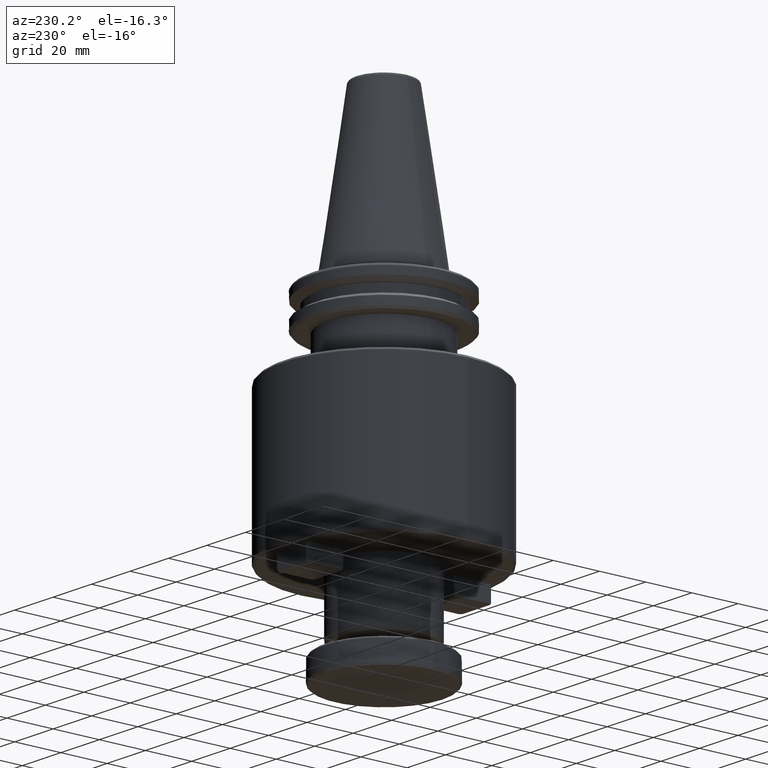
[diagram: clean part render]
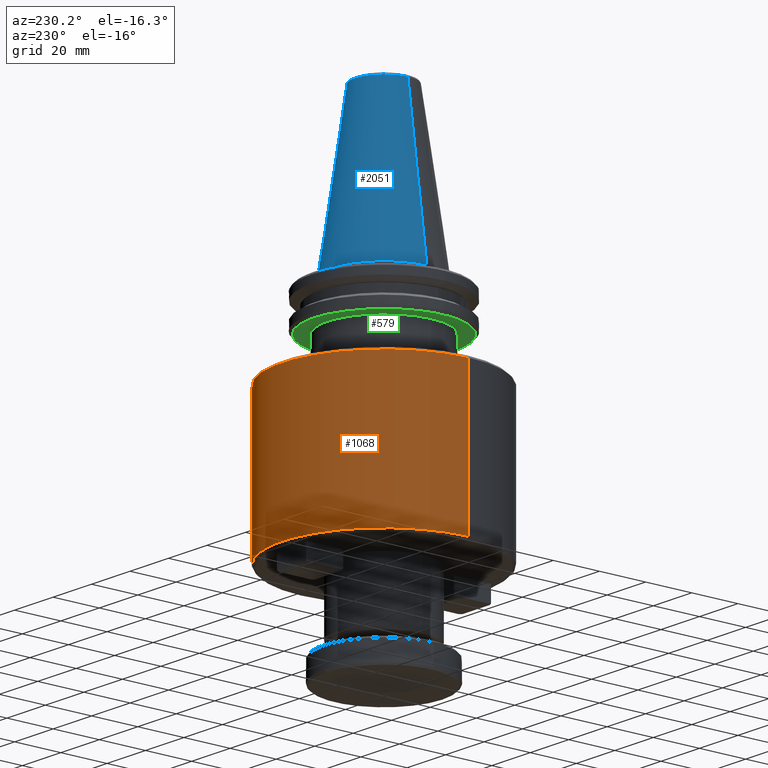
[diagram: same view with three faces highlighted in distinct colors, each labeled with its STEP entity id]
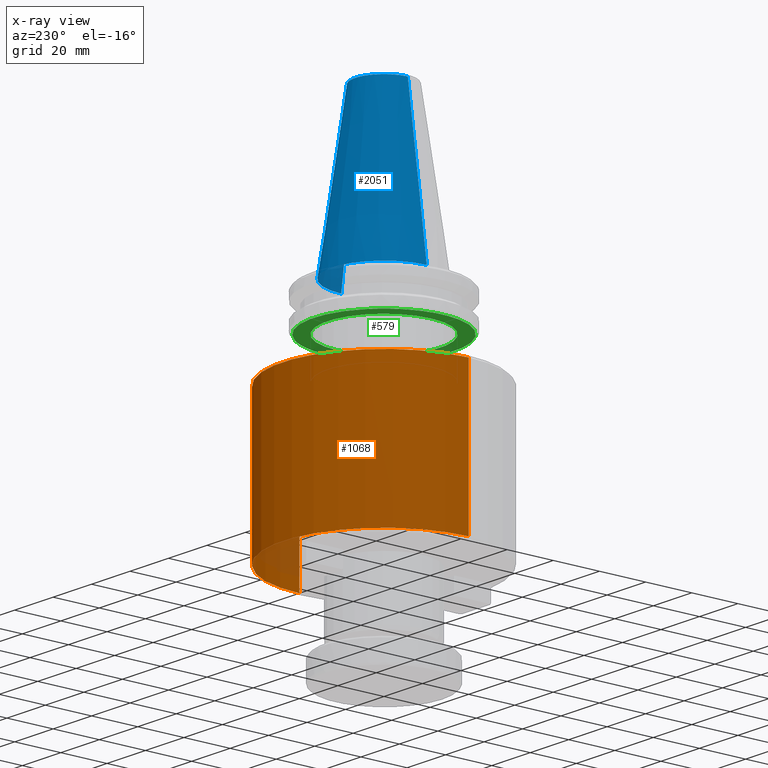
[diagram: x-ray of the same camera — body ghosted, the three highlighted faces saturated]
A machine part, auxiliary view with three faces highlighted in distinct colors.
The next image is the same camera in x-ray (body ghosted, the three faces saturated) — at least one of them is partly hidden behind the body in this view.
Their STEP definitions:

[orange] entity #1068 — the highlighted cylindrical surface (partial cylindrical patch) has radius 44 mm, axis along (0, 0, 1).
#106 = EDGE_CURVE ( 'NONE', #834, #3682, #4061, .T. ) ;
#125 = CARTESIAN_POINT ( 'NONE',  ( 44.00000000000000000, 5.388445916248353600E-015, -37.00000000000000700 ) ) ;
#213 = AXIS2_PLACEMENT_3D ( 'NONE', #1503, #1488, #479 ) ;
#333 = EDGE_LOOP ( 'NONE', ( #886, #373, #1699, #1539 ) ) ;
#373 = ORIENTED_EDGE ( 'NONE', *, *, #858, .T. ) ;
#479 = DIRECTION ( 'NONE',  ( 1.000000000000000000, 0.0000000000000000000, 0.0000000000000000000 ) ) ;
#661 = EDGE_CURVE ( 'NONE', #698, #3682, #1400, .T. ) ;
#698 = VERTEX_POINT ( 'NONE', #4205 ) ;
#834 = VERTEX_POINT ( 'NONE', #3074 ) ;
#858 = EDGE_CURVE ( 'NONE', #3870, #834, #3028, .T. ) ;
#886 = ORIENTED_EDGE ( 'NONE', *, *, #1142, .T. ) ;
#1068 = ADVANCED_FACE ( 'NONE', ( #3599 ), #3194, .T. ) ;
#1142 = EDGE_CURVE ( 'NONE', #698, #3870, #3052, .T. ) ;
#1400 = LINE ( 'NONE', #3869, #1418 ) ;
#1418 = VECTOR ( 'NONE', #3083, 1000.000000000000000 ) ;
#1488 = DIRECTION ( 'NONE',  ( -0.0000000000000000000, -0.0000000000000000000, -1.000000000000000000 ) ) ;
#1503 = CARTESIAN_POINT ( 'NONE',  ( 0.0000000000000000000, 0.0000000000000000000, -37.00000000000000700 ) ) ;
#1539 = ORIENTED_EDGE ( 'NONE', *, *, #661, .F. ) ;
#1699 = ORIENTED_EDGE ( 'NONE', *, *, #106, .T. ) ;
#2151 = AXIS2_PLACEMENT_3D ( 'NONE', #2416, #2415, #2407 ) ;
#2407 = DIRECTION ( 'NONE',  ( 1.000000000000000000, 0.0000000000000000000, 0.0000000000000000000 ) ) ;
#2415 = DIRECTION ( 'NONE',  ( 0.0000000000000000000, 0.0000000000000000000, 1.000000000000000000 ) ) ;
#2416 = CARTESIAN_POINT ( 'NONE',  ( 0.0000000000000000000, 0.0000000000000000000, -99.00000000000000000 ) ) ;
#2561 = DIRECTION ( 'NONE',  ( 0.0000000000000000000, 0.0000000000000000000, 1.000000000000000000 ) ) ;
#2578 = CARTESIAN_POINT ( 'NONE',  ( 0.0000000000000000000, 0.0000000000000000000, 82.95681253582424100 ) ) ;
#2582 = DIRECTION ( 'NONE',  ( 1.000000000000000000, 0.0000000000000000000, 0.0000000000000000000 ) ) ;
#2592 = CARTESIAN_POINT ( 'NONE',  ( -44.00000000000001400, 5.388445916248355200E-015, -99.00000000000000000 ) ) ;
#3028 = LINE ( 'NONE', #3785, #3073 ) ;
#3052 = CIRCLE ( 'NONE', #2151, 44.00000000000000000 ) ;
#3073 = VECTOR ( 'NONE', #3754, 1000.000000000000000 ) ;
#3074 = CARTESIAN_POINT ( 'NONE',  ( -44.00000000000000000, 0.0000000000000000000, -37.00000000000000700 ) ) ;
#3083 = DIRECTION ( 'NONE',  ( 0.0000000000000000000, 0.0000000000000000000, 1.000000000000000000 ) ) ;
#3194 = CYLINDRICAL_SURFACE ( 'NONE', #3434, 44.00000000000000000 ) ;
#3434 = AXIS2_PLACEMENT_3D ( 'NONE', #2578, #2561, #2582 ) ;
#3599 = FACE_OUTER_BOUND ( 'NONE', #333, .T. ) ;
#3682 = VERTEX_POINT ( 'NONE', #125 ) ;
#3754 = DIRECTION ( 'NONE',  ( 0.0000000000000000000, 0.0000000000000000000, 1.000000000000000000 ) ) ;
#3785 = CARTESIAN_POINT ( 'NONE',  ( -44.00000000000000000, 5.388445916248353600E-015, 82.95681253582424100 ) ) ;
#3869 = CARTESIAN_POINT ( 'NONE',  ( 44.00000000000000000, 0.0000000000000000000, 82.95681253582424100 ) ) ;
#3870 = VERTEX_POINT ( 'NONE', #2592 ) ;
#4061 = CIRCLE ( 'NONE', #213, 44.00000000000000000 ) ;
#4205 = CARTESIAN_POINT ( 'NONE',  ( 44.00000000000001400, 0.0000000000000000000, -99.00000000000000000 ) ) ;

[blue] entity #2051 — the highlighted conical surface has half-angle 8.297 deg.
#58 = VERTEX_POINT ( 'NONE', #902 ) ;
#85 = EDGE_CURVE ( 'NONE', #2883, #2506, #874, .T. ) ;
#194 = DIRECTION ( 'NONE',  ( 0.0000000000000000000, 0.0000000000000000000, -1.000000000000000000 ) ) ;
#263 = DIRECTION ( 'NONE',  ( 0.0000000000000000000, 0.0000000000000000000, -1.000000000000000000 ) ) ;
#287 = CARTESIAN_POINT ( 'NONE',  ( 0.0000000000000000000, 0.0000000000000000000, 67.54430822726729400 ) ) ;
#292 = CARTESIAN_POINT ( 'NONE',  ( 0.0000000000000000000, 0.0000000000000000000, 0.0000000000000000000 ) ) ;
#314 = DIRECTION ( 'NONE',  ( -1.000000000000000000, 0.0000000000000000000, 0.0000000000000000000 ) ) ;
#410 = AXIS2_PLACEMENT_3D ( 'NONE', #3547, #3568, #3565 ) ;
#437 = VERTEX_POINT ( 'NONE', #3558 ) ;
#480 = ORIENTED_EDGE ( 'NONE', *, *, #2951, .F. ) ;
#874 = CIRCLE ( 'NONE', #3223, 12.37469537611110800 ) ;
#876 = EDGE_CURVE ( 'NONE', #437, #58, #2825, .T. ) ;
#902 = CARTESIAN_POINT ( 'NONE',  ( 22.22500000000000100, 2.721777511104992800E-015, 0.0000000000000000000 ) ) ;
#921 = ORIENTED_EDGE ( 'NONE', *, *, #876, .F. ) ;
#1069 = LINE ( 'NONE', #2989, #3595 ) ;
#1289 = CONICAL_SURFACE ( 'NONE', #3408, 22.22500000000000100, 0.1448138465474190500 ) ;
#1322 = DIRECTION ( 'NONE',  ( -1.000000000000000000, 0.0000000000000000000, 0.0000000000000000000 ) ) ;
#1506 = LINE ( 'NONE', #3652, #2810 ) ;
#1795 = ORIENTED_EDGE ( 'NONE', *, *, #85, .T. ) ;
#1827 = CARTESIAN_POINT ( 'NONE',  ( 12.37469537611110800, 2.118620309691397300E-015, 67.54430822726729400 ) ) ;
#2051 = ADVANCED_FACE ( 'NONE', ( #4296 ), #1289, .T. ) ;
#2506 = VERTEX_POINT ( 'NONE', #1827 ) ;
#2694 = CARTESIAN_POINT ( 'NONE',  ( -12.37469537611110800, 0.0000000000000000000, 67.54430822726729400 ) ) ;
#2771 = EDGE_CURVE ( 'NONE', #2506, #58, #1069, .T. ) ;
#2810 = VECTOR ( 'NONE', #3976, 1000.000000000000000 ) ;
#2825 = CIRCLE ( 'NONE', #410, 22.22500000000000500 ) ;
#2883 = VERTEX_POINT ( 'NONE', #2694 ) ;
#2951 = EDGE_CURVE ( 'NONE', #2883, #437, #1506, .T. ) ;
#2989 = CARTESIAN_POINT ( 'NONE',  ( 22.22500000000000100, 2.721777511104992800E-015, 0.0000000000000000000 ) ) ;
#3223 = AXIS2_PLACEMENT_3D ( 'NONE', #287, #194, #1322 ) ;
#3408 = AXIS2_PLACEMENT_3D ( 'NONE', #292, #263, #314 ) ;
#3547 = CARTESIAN_POINT ( 'NONE',  ( 0.0000000000000000000, 0.0000000000000000000, 0.0000000000000000000 ) ) ;
#3558 = CARTESIAN_POINT ( 'NONE',  ( -22.22500000000000100, 0.0000000000000000000, 0.0000000000000000000 ) ) ;
#3565 = DIRECTION ( 'NONE',  ( 1.000000000000000000, 0.0000000000000000000, 9.822541477422708000E-017 ) ) ;
#3568 = DIRECTION ( 'NONE',  ( -0.0000000000000000000, -0.0000000000000000000, -1.000000000000000000 ) ) ;
#3595 = VECTOR ( 'NONE', #4285, 1000.000000000000000 ) ;
#3652 = CARTESIAN_POINT ( 'NONE',  ( -22.22500000000000100, 0.0000000000000000000, 0.0000000000000000000 ) ) ;
#3912 = EDGE_LOOP ( 'NONE', ( #1795, #4100, #921, #480 ) ) ;
#3976 = DIRECTION ( 'NONE',  ( -0.1443082272673070500, 0.0000000000000000000, -0.9895327864921743500 ) ) ;
#4100 = ORIENTED_EDGE ( 'NONE', *, *, #2771, .T. ) ;
#4285 = DIRECTION ( 'NONE',  ( 0.1443082272673070500, 1.767266086135363700E-017, -0.9895327864921743500 ) ) ;
#4296 = FACE_OUTER_BOUND ( 'NONE', #3912, .T. ) ;

[green] entity #579 — the highlighted planar face has unit normal (0, 0, -1).
#17 = CARTESIAN_POINT ( 'NONE',  ( 16.82180190648200500, -25.56823429586928900, -19.10000000000000500 ) ) ;
#24 = CARTESIAN_POINT ( 'NONE',  ( 3.166151006705770800, -30.46140382597060600, -19.10000000000001200 ) ) ;
#53 = CARTESIAN_POINT ( 'NONE',  ( -4.636279539811212700, -30.23090493186514000, -19.10000000000000100 ) ) ;
#111 = CARTESIAN_POINT ( 'NONE',  ( 0.0000000000000000000, 0.0000000000000000000, -19.09999999877758000 ) ) ;
#132 = CARTESIAN_POINT ( 'NONE',  ( 27.56587331839861600, -13.27428387458943800, -19.09999999999999800 ) ) ;
#204 = CARTESIAN_POINT ( 'NONE',  ( 22.45416143053250800, -20.76589565598027000, -19.10000000000000500 ) ) ;
#211 = EDGE_LOOP ( 'NONE', ( #3525, #566, #3971, #3267, #1081, #1640, #2571 ) ) ;
#216 = CARTESIAN_POINT ( 'NONE',  ( 22.52513206187470700, -20.68888644021010800, -19.10000000000000900 ) ) ;
#221 = CARTESIAN_POINT ( 'NONE',  ( -4.047447494820515200, -30.31647627983856800, -19.10000000000000900 ) ) ;
#222 = VERTEX_POINT ( 'NONE', #3357 ) ;
#270 = CARTESIAN_POINT ( 'NONE',  ( -24.35471234555324600, 18.50002675126633300, -19.09999999877758000 ) ) ;
#278 = CARTESIAN_POINT ( 'NONE',  ( -25.54018883534800800, 16.93931054832113100, -19.10000000000000500 ) ) ;
#285 = CARTESIAN_POINT ( 'NONE',  ( -26.56612284950205100, 15.28016086959555500, -19.10000000000000500 ) ) ;
#289 = ORIENTED_EDGE ( 'NONE', *, *, #2607, .F. ) ;
#291 = CARTESIAN_POINT ( 'NONE',  ( -28.29883549210119800, 11.76494105805098300, -19.10000000000000500 ) ) ;
#294 = B_SPLINE_CURVE_WITH_KNOTS ( 'NONE', 3,
 ( #302, #300, #291, #285, #278, #270 ),
 .UNSPECIFIED., .F., .F.,
 ( 4, 2, 4 ),
 ( 0.0000000000000000000, 0.5000000000000000000, 1.000000000000000000 ),
 .UNSPECIFIED. ) ;
#296 = CARTESIAN_POINT ( 'NONE',  ( 22.66821511925894200, -20.53202962012767000, -19.10000000000000500 ) ) ;
#300 = CARTESIAN_POINT ( 'NONE',  ( -28.99013299704189700, 9.940434568560412700, -19.10000000000000100 ) ) ;
#302 = CARTESIAN_POINT ( 'NONE',  ( -29.50593695887968700, 8.050011640415894100, -19.09999999877758000 ) ) ;
#359 = CARTESIAN_POINT ( 'NONE',  ( 14.88253584773120200, -26.72066063288397000, -19.10000000000000100 ) ) ;
#365 = EDGE_LOOP ( 'NONE', ( #3972, #289 ) ) ;
#374 = CIRCLE ( 'NONE', #1253, 30.58435880040995200 ) ;
#386 = CARTESIAN_POINT ( 'NONE',  ( 25.72060642469137200, -16.54900938329657500, -19.10000000000000500 ) ) ;
#397 = EDGE_CURVE ( 'NONE', #3108, #611, #374, .T. ) ;
#457 = DIRECTION ( 'NONE',  ( 1.000000000000000000, 0.0000000000000000000, 0.0000000000000000000 ) ) ;
#472 = CARTESIAN_POINT ( 'NONE',  ( 26.29437709911257700, -15.63042418696883700, -19.10000000000000500 ) ) ;
#566 = ORIENTED_EDGE ( 'NONE', *, *, #3145, .F. ) ;
#567 = CARTESIAN_POINT ( 'NONE',  ( -24.35471234555324600, 18.50002675126633300, -19.09999999877758000 ) ) ;
#569 = EDGE_CURVE ( 'NONE', #3108, #714, #3529, .T. ) ;
#570 = CARTESIAN_POINT ( 'NONE',  ( -9.195643051181685100, -29.16949528698672400, -19.10000000000000900 ) ) ;
#579 = ADVANCED_FACE ( 'NONE', ( #1039, #826 ), #3180, .T. ) ;
#611 = VERTEX_POINT ( 'NONE', #3942 ) ;
#714 = VERTEX_POINT ( 'NONE', #3663 ) ;
#719 = CARTESIAN_POINT ( 'NONE',  ( 19.93308098988654800, -23.26029377377305400, -19.10000000000000900 ) ) ;
#781 = CARTESIAN_POINT ( 'NONE',  ( 29.50593695887968700, -8.050011640415894100, -19.09999999877758000 ) ) ;
#826 = FACE_OUTER_BOUND ( 'NONE', #211, .T. ) ;
#830 = CARTESIAN_POINT ( 'NONE',  ( 27.94464134489557200, -12.42979159005786200, -19.10000000000001200 ) ) ;
#847 = CARTESIAN_POINT ( 'NONE',  ( 10.24327173504158100, -28.81937833701286400, -19.10000000000000500 ) ) ;
#928 = CIRCLE ( 'NONE', #4021, 30.58435880040995200 ) ;
#943 = DIRECTION ( 'NONE',  ( 1.000000000000000000, 0.0000000000000000000, 0.0000000000000000000 ) ) ;
#970 = VERTEX_POINT ( 'NONE', #3511 ) ;
#1039 = FACE_BOUND ( 'NONE', #365, .T. ) ;
#1063 = CARTESIAN_POINT ( 'NONE',  ( 10.94079956306805100, -28.56608249322954800, -19.10000000000000900 ) ) ;
#1064 = CARTESIAN_POINT ( 'NONE',  ( 0.0000000000000000000, 0.0000000000000000000, -19.09999999877758000 ) ) ;
#1081 = ORIENTED_EDGE ( 'NONE', *, *, #1603, .T. ) ;
#1151 = DIRECTION ( 'NONE',  ( -0.0000000000000000000, -0.0000000000000000000, 1.000000000000000000 ) ) ;
#1223 = CARTESIAN_POINT ( 'NONE',  ( -0.7936655208069568500, -30.58432798036122000, -19.10000000000000100 ) ) ;
#1234 = CARTESIAN_POINT ( 'NONE',  ( 29.50593695887965900, 8.050011640415990000, -19.09999999877758000 ) ) ;
#1235 = CARTESIAN_POINT ( 'NONE',  ( 29.18634062978594200, 9.221269143563914000, -19.10000000000000500 ) ) ;
#1244 = CARTESIAN_POINT ( 'NONE',  ( 28.79848820868595600, 10.36927195262887700, -19.10000000000000500 ) ) ;
#1248 = CARTESIAN_POINT ( 'NONE',  ( 28.31382758094056800, 11.56430445685524000, -19.10000000000000900 ) ) ;
#1251 = CARTESIAN_POINT ( 'NONE',  ( 28.28372968616552200, 11.63773453184817400, -19.10000000000000900 ) ) ;
#1253 = AXIS2_PLACEMENT_3D ( 'NONE', #2136, #2021, #943 ) ;
#1260 = CARTESIAN_POINT ( 'NONE',  ( 28.22432639104233900, 11.78107541670503600, -19.10000000000000500 ) ) ;
#1262 = CARTESIAN_POINT ( 'NONE',  ( 28.13442549670037700, 11.99570152419388200, -19.10000000000000500 ) ) ;
#1265 = CARTESIAN_POINT ( 'NONE',  ( 27.91908508163535500, 12.49379923642603000, -19.10000000000000500 ) ) ;
#1266 = CARTESIAN_POINT ( 'NONE',  ( 27.46611760510352000, 13.47920850658973700, -19.10000000000000900 ) ) ;
#1274 = CARTESIAN_POINT ( 'NONE',  ( 27.03965408853028400, 14.30535447364331600, -19.10000000000000100 ) ) ;
#1278 = CARTESIAN_POINT ( 'NONE',  ( 26.70070361132738800, 14.91571867381870400, -19.10000000000000100 ) ) ;
#1279 = CARTESIAN_POINT ( 'NONE',  ( 26.66158410836062100, 14.98553842598051500, -19.10000000000000500 ) ) ;
#1288 = CARTESIAN_POINT ( 'NONE',  ( 26.58403738893923300, 15.12268211273652300, -19.10000000000000100 ) ) ;
#1296 = CARTESIAN_POINT ( 'NONE',  ( 26.46695125748617600, 15.32790333300081500, -19.10000000000000900 ) ) ;
#1305 = CARTESIAN_POINT ( 'NONE',  ( 26.18838791784893500, 15.80329267786272900, -19.10000000000000500 ) ) ;
#1312 = CARTESIAN_POINT ( 'NONE',  ( 25.60981177358732800, 16.74023069123413500, -19.10000000000000500 ) ) ;
#1319 = CARTESIAN_POINT ( 'NONE',  ( 25.07711885281372900, 17.51959354323408400, -19.10000000000000100 ) ) ;
#1320 = CARTESIAN_POINT ( 'NONE',  ( 24.61278002360990800, 18.15588099004128300, -19.10000000000000500 ) ) ;
#1325 = CARTESIAN_POINT ( 'NONE',  ( 24.51742230446014800, 18.28446092688399100, -19.10000000000000500 ) ) ;
#1328 = CARTESIAN_POINT ( 'NONE',  ( 24.32635705293869000, 18.53792103917297500, -19.10000000000000100 ) ) ;
#1329 = CARTESIAN_POINT ( 'NONE',  ( 24.03691940912555600, 18.91573389369128600, -19.10000000000000500 ) ) ;
#1331 = CARTESIAN_POINT ( 'NONE',  ( 23.34168654117829400, 19.78065602349450500, -19.10000000000000500 ) ) ;
#1334 = CARTESIAN_POINT ( 'NONE',  ( 22.71169545599505600, 20.49349008205810900, -19.10000000000000900 ) ) ;
#1339 = CARTESIAN_POINT ( 'NONE',  ( 21.40627702113345900, 21.88112117654264600, -19.10000000000000500 ) ) ;
#1340 = CARTESIAN_POINT ( 'NONE',  ( 20.48123999505939400, 22.74936446789017100, -19.10000000000000100 ) ) ;
#1346 = CARTESIAN_POINT ( 'NONE',  ( 19.38055795302008400, 23.66050113822976500, -19.10000000000001200 ) ) ;
#1355 = CARTESIAN_POINT ( 'NONE',  ( 19.25930180620994000, 23.75930152089461000, -19.10000000000001200 ) ) ;
#1361 = CARTESIAN_POINT ( 'NONE',  ( 19.01361294775681200, 23.95638265829615000, -19.09999999999999800 ) ) ;
#1363 = CARTESIAN_POINT ( 'NONE',  ( 18.64294495310518600, 24.24904771131965500, -19.10000000000000900 ) ) ;
#1368 = CARTESIAN_POINT ( 'NONE',  ( 17.76311001678113400, 24.91123626348944600, -19.10000000000000100 ) ) ;
#1370 = CARTESIAN_POINT ( 'NONE',  ( 5.447226833889317300, -30.09658397973939300, -19.10000000000000500 ) ) ;
#1375 = CARTESIAN_POINT ( 'NONE',  ( 16.98334930198293300, 25.44334661411777900, -19.10000000000000500 ) ) ;
#1378 = CARTESIAN_POINT ( 'NONE',  ( 16.38572052405262600, 25.82468945861612000, -19.10000000000000100 ) ) ;
#1379 = CARTESIAN_POINT ( 'NONE',  ( 16.32111855271079600, 25.86556262578678700, -19.10000000000000100 ) ) ;
#1382 = CARTESIAN_POINT ( 'NONE',  ( 16.18968749047009200, 25.94803225022423700, -19.10000000000000900 ) ) ;
#1384 = CARTESIAN_POINT ( 'NONE',  ( 15.99211500375794700, 26.07096171698068000, -19.10000000000000900 ) ) ;
#1397 = CARTESIAN_POINT ( 'NONE',  ( 15.52813128130545700, 26.35237235011442500, -19.10000000000000900 ) ) ;
#1402 = CARTESIAN_POINT ( 'NONE',  ( 14.58823882257053300, 26.89349445919003000, -19.10000000000000500 ) ) ;
#1403 = CARTESIAN_POINT ( 'NONE',  ( 25.55219655712748800, -16.80738867178014600, -19.10000000000000900 ) ) ;
#1410 = CARTESIAN_POINT ( 'NONE',  ( 13.76217383423211000, 27.32011485464017000, -19.10000000000000500 ) ) ;
#1411 = CARTESIAN_POINT ( 'NONE',  ( 13.46675684607612000, -27.47306857769193300, -19.10000000000000900 ) ) ;
#1412 = DIRECTION ( 'NONE',  ( 1.000000000000000000, 0.0000000000000000000, 0.0000000000000000000 ) ) ;
#1415 = CARTESIAN_POINT ( 'NONE',  ( 13.13240365255261600, 27.62148087363473100, -19.10000000000000500 ) ) ;
#1421 = DIRECTION ( 'NONE',  ( -0.0000000000000000000, -0.0000000000000000000, -1.000000000000000000 ) ) ;
#1423 = CARTESIAN_POINT ( 'NONE',  ( 13.06536007812701200, 27.65325169537482700, -19.10000000000000100 ) ) ;
#1424 = CARTESIAN_POINT ( 'NONE',  ( 12.92802695592982500, 27.71772311958008600, -19.10000000000000900 ) ) ;
#1429 = CARTESIAN_POINT ( 'NONE',  ( 12.72171218949350900, 27.81364574513149900, -19.10000000000000900 ) ) ;
#1430 = CARTESIAN_POINT ( 'NONE',  ( 12.23810548582505600, 28.03197362945626700, -19.10000000000000500 ) ) ;
#1433 = CARTESIAN_POINT ( 'NONE',  ( 11.26206975055332500, 28.44666309692501500, -19.10000000000000100 ) ) ;
#1439 = CARTESIAN_POINT ( 'NONE',  ( 10.41034370100355100, 28.76445469558826700, -19.10000000000000500 ) ) ;
#1440 = CARTESIAN_POINT ( 'NONE',  ( 7.565125950941371100, -29.65418414010071800, -19.10000000000000500 ) ) ;
#1443 = CARTESIAN_POINT ( 'NONE',  ( 8.686726280910074000, 29.34982920450148600, -19.10000000000000900 ) ) ;
#1449 = CARTESIAN_POINT ( 'NONE',  ( 7.517538265328743900, 29.67087649393396000, -19.10000000000000500 ) ) ;
#1452 = CARTESIAN_POINT ( 'NONE',  ( 6.256069620680725600, 29.93772805485906800, -19.10000000000000900 ) ) ;
#1453 = CARTESIAN_POINT ( 'NONE',  ( 6.178357567779041700, 29.95386665788899800, -19.10000000000000900 ) ) ;
#1455 = CARTESIAN_POINT ( 'NONE',  ( -9.343182468531940900, -29.12229317852812500, -19.10000000000000500 ) ) ;
#1467 = CARTESIAN_POINT ( 'NONE',  ( 6.026315443778401900, 29.98482716932647900, -19.10000000000000500 ) ) ;
#1474 = CARTESIAN_POINT ( 'NONE',  ( 5.798126224598956200, 30.03039269424756300, -19.10000000000000100 ) ) ;
#1475 = CARTESIAN_POINT ( 'NONE',  ( 5.264802480930863600, 30.13058555675097900, -19.10000000000000100 ) ) ;
#1477 = CARTESIAN_POINT ( 'NONE',  ( 17.87849741863398000, -24.82948193938068100, -19.10000000000000100 ) ) ;
#1482 = CARTESIAN_POINT ( 'NONE',  ( 4.194626064597124500, 30.30646449917461300, -19.10000000000000500 ) ) ;
#1491 = CARTESIAN_POINT ( 'NONE',  ( 3.271282400886674800, 30.41520625110938200, -19.10000000000000500 ) ) ;
#1492 = CARTESIAN_POINT ( 'NONE',  ( 2.575749856820219300, 30.47575675141769800, -19.10000000000000500 ) ) ;
#1494 = CARTESIAN_POINT ( 'NONE',  ( 2.495993614183678500, 30.48239565653807800, -19.10000000000000500 ) ) ;
#1500 = CARTESIAN_POINT ( 'NONE',  ( 2.338937091250613300, 30.49485090081023100, -19.10000000000000100 ) ) ;
#1502 = CARTESIAN_POINT ( 'NONE',  ( 2.103333420339649000, 30.51262227300270200, -19.10000000000000100 ) ) ;
#1505 = CARTESIAN_POINT ( 'NONE',  ( 1.553459315967854200, 30.54770834860802300, -19.10000000000000900 ) ) ;
#1515 = CARTESIAN_POINT ( 'NONE',  ( 0.4531822849060669900, 30.59235866177671400, -19.10000000000000500 ) ) ;
#1516 = CARTESIAN_POINT ( 'NONE',  ( -0.4908188656923748200, 30.58687863642091600, -19.10000000000000900 ) ) ;
#1522 = CARTESIAN_POINT ( 'NONE',  ( -1.277990131494122400, 30.55800543620354400, -19.10000000000000500 ) ) ;
#1523 = CARTESIAN_POINT ( 'NONE',  ( -1.437913567965121800, 30.55090690001179600, -19.10000000000000900 ) ) ;
#1528 = CARTESIAN_POINT ( 'NONE',  ( -1.754889633223906300, 30.53434994063401200, -19.10000000000000500 ) ) ;
#1534 = CARTESIAN_POINT ( 'NONE',  ( -2.229972106739516000, 30.50583071842478200, -19.10000000000000500 ) ) ;
#1535 = CARTESIAN_POINT ( 'NONE',  ( -3.335826507667983200, 30.41349938460541600, -19.10000000000000100 ) ) ;
#1542 = CARTESIAN_POINT ( 'NONE',  ( -4.279122215993030700, 30.29015284362106900, -19.10000000000000500 ) ) ;
#1544 = CARTESIAN_POINT ( 'NONE',  ( -6.159607642682074100, 29.98451923137153200, -19.10000000000000500 ) ) ;
#1549 = CARTESIAN_POINT ( 'NONE',  ( -7.396785857642844200, 29.70357443817780300, -19.10000000000000100 ) ) ;
#1552 = CARTESIAN_POINT ( 'NONE',  ( -8.767786026824518700, 29.30104552520869300, -19.10000000000000500 ) ) ;
#1553 = CARTESIAN_POINT ( 'NONE',  ( -8.917516567687371800, 29.25582015750815400, -19.10000000000000500 ) ) ;
#1555 = CARTESIAN_POINT ( 'NONE',  ( -9.218324187523917200, 29.16244582629286700, -19.10000000000000100 ) ) ;
#1556 = CARTESIAN_POINT ( 'NONE',  ( -9.668279344121133400, 29.01896080072954100, -19.10000000000000500 ) ) ;
#1558 = CARTESIAN_POINT ( 'NONE',  ( -10.70938079741142000, 28.66019770656558000, -19.10000000000000100 ) ) ;
#1563 = CARTESIAN_POINT ( 'NONE',  ( -11.58667819376902100, 28.31160413811162600, -19.10000000000000900 ) ) ;
#1565 = CARTESIAN_POINT ( 'NONE',  ( -12.23711360209160000, 28.02961778932873900, -19.10000000000000900 ) ) ;
#1568 = CARTESIAN_POINT ( 'NONE',  ( -12.30602042319770800, 27.99943186576027500, -19.10000000000001600 ) ) ;
#1569 = CARTESIAN_POINT ( 'NONE',  ( -12.44675998882116000, 27.93716668423903100, -19.10000000000000500 ) ) ;
#1573 = CARTESIAN_POINT ( 'NONE',  ( -12.65743148084894200, 27.84302147053579500, -19.10000000000000500 ) ) ;
#1579 = DIRECTION ( 'NONE',  ( -0.0000000000000000000, -0.0000000000000000000, -1.000000000000000000 ) ) ;
#1581 = CARTESIAN_POINT ( 'NONE',  ( -13.14593330072873200, 27.61811721527876200, -19.10000000000000900 ) ) ;
#1583 = CARTESIAN_POINT ( 'NONE',  ( -14.11067696108144500, 27.14738034496676300, -19.10000000000000500 ) ) ;
#1588 = CARTESIAN_POINT ( 'NONE',  ( -15.99112436415940900, 26.12219316515105300, -19.10000000000000900 ) ) ;
#1599 = CARTESIAN_POINT ( 'NONE',  ( -18.50002675126633300, 24.35471234555324600, -19.09999999877758000 ) ) ;
#1601 = CARTESIAN_POINT ( 'NONE',  ( -17.51886799372202900, 25.09995254383747500, -19.10000000000000500 ) ) ;
#1603 = EDGE_CURVE ( 'NONE', #222, #3672, #3890, .T. ) ;
#1640 = ORIENTED_EDGE ( 'NONE', *, *, #3158, .F. ) ;
#1760 = CARTESIAN_POINT ( 'NONE',  ( 25.91506848432963000, -16.24456535706762800, -19.10000000000000500 ) ) ;
#1764 = CARTESIAN_POINT ( 'NONE',  ( 9.892237708290188900, -28.94069923155255000, -19.10000000000000500 ) ) ;
#1794 = CARTESIAN_POINT ( 'NONE',  ( 4.938364931540699700, -30.18303432026915800, -19.10000000000000500 ) ) ;
#1805 = VERTEX_POINT ( 'NONE', #567 ) ;
#1840 = CARTESIAN_POINT ( 'NONE',  ( -4.683322544848318900, -30.22365628541788900, -19.10000000000000500 ) ) ;
#1848 = CARTESIAN_POINT ( 'NONE',  ( -5.550699401406691700, -30.08776695510170300, -19.10000000000000500 ) ) ;
#1868 = CARTESIAN_POINT ( 'NONE',  ( -6.763633612821551300, -29.84719582226912800, -19.10000000000000500 ) ) ;
#1890 = CARTESIAN_POINT ( 'NONE',  ( -3.359542261740482900, -30.40384640239971500, -19.10000000000000500 ) ) ;
#1964 = CIRCLE ( 'NONE', #2639, 24.50000000000000000 ) ;
#2021 = DIRECTION ( 'NONE',  ( -0.0000000000000000000, -0.0000000000000000000, 1.000000000000000000 ) ) ;
#2027 = EDGE_CURVE ( 'NONE', #970, #1805, #294, .T. ) ;
#2091 = CARTESIAN_POINT ( 'NONE',  ( 14.31298725537405200, -27.02868588326913700, -19.10000000000000500 ) ) ;
#2128 = CARTESIAN_POINT ( 'NONE',  ( 4.783350766199017600, -30.20798338819395200, -19.10000000000000500 ) ) ;
#2136 = CARTESIAN_POINT ( 'NONE',  ( 0.0000000000000000000, 0.0000000000000000000, -19.09999999877758000 ) ) ;
#2165 = CARTESIAN_POINT ( 'NONE',  ( 28.04473044301726900, -12.20290262157235800, -19.10000000000000100 ) ) ;
#2178 = CARTESIAN_POINT ( 'NONE',  ( 25.63623530936496000, -16.67892256050461000, -19.10000000000000500 ) ) ;
#2256 = AXIS2_PLACEMENT_3D ( 'NONE', #3136, #1151, #3451 ) ;
#2272 = CARTESIAN_POINT ( 'NONE',  ( 28.94006249014968200, -9.948882374008352500, -19.10000000000000500 ) ) ;
#2283 = CARTESIAN_POINT ( 'NONE',  ( 29.50593695887968700, -8.050011640415894100, -19.09999999877758000 ) ) ;
#2290 = AXIS2_PLACEMENT_3D ( 'NONE', #1064, #3373, #1412 ) ;
#2351 = CARTESIAN_POINT ( 'NONE',  ( 9.640580262597561400, -29.02520083562890100, -19.10000000000000500 ) ) ;
#2402 = CARTESIAN_POINT ( 'NONE',  ( 15.53753395421813000, -26.34988902405435600, -19.10000000000000900 ) ) ;
#2411 = CARTESIAN_POINT ( 'NONE',  ( -8.850750154841392700, -29.27696876187939500, -19.10000000000000500 ) ) ;
#2417 = CARTESIAN_POINT ( 'NONE',  ( -8.158427338735364700, -29.48125659895528400, -19.10000000000000500 ) ) ;
#2423 = CARTESIAN_POINT ( 'NONE',  ( 5.091218007676277900, -30.15789762491641200, -19.10000000000000900 ) ) ;
#2424 = CARTESIAN_POINT ( 'NONE',  ( -4.538187366338957100, -30.24578697828068400, -19.10000000000000100 ) ) ;
#2464 = VERTEX_POINT ( 'NONE', #3442 ) ;
#2476 = CARTESIAN_POINT ( 'NONE',  ( -4.391022105728267500, -30.26774995785368500, -19.10000000000000500 ) ) ;
#2491 = DIRECTION ( 'NONE',  ( -0.0000000000000000000, -0.0000000000000000000, 1.000000000000000000 ) ) ;
#2512 = CARTESIAN_POINT ( 'NONE',  ( 27.01453231070431500, -14.38112937620777400, -19.10000000000000900 ) ) ;
#2571 = ORIENTED_EDGE ( 'NONE', *, *, #397, .F. ) ;
#2607 = EDGE_CURVE ( 'NONE', #2464, #4115, #3189, .T. ) ;
#2639 = AXIS2_PLACEMENT_3D ( 'NONE', #3374, #1421, #3710 ) ;
#2736 = CARTESIAN_POINT ( 'NONE',  ( -27.28631539589520500, -13.82611176813281700, -19.10000000000000500 ) ) ;
#2739 = CARTESIAN_POINT ( 'NONE',  ( -22.95981042903576300, -20.22301021334099100, -19.10000000000000900 ) ) ;
#2740 = CARTESIAN_POINT ( 'NONE',  ( 21.20610461385350800, -22.10596665135101400, -19.10000000000000100 ) ) ;
#2847 = CARTESIAN_POINT ( 'NONE',  ( 27.98481301560113700, -12.33908451847029400, -19.10000000000000500 ) ) ;
#2890 = CARTESIAN_POINT ( 'NONE',  ( 23.37016937102523100, -19.73720656645907200, -19.10000000000000500 ) ) ;
#2895 = CARTESIAN_POINT ( 'NONE',  ( 0.0000000000000000000, 0.0000000000000000000, -19.10000000000000500 ) ) ;
#2984 = AXIS2_PLACEMENT_3D ( 'NONE', #2895, #1579, #3195 ) ;
#3014 = CARTESIAN_POINT ( 'NONE',  ( -22.30836331049845400, -20.92243750512144400, -19.10000000000000500 ) ) ;
#3018 = EDGE_CURVE ( 'NONE', #222, #1805, #3960, .T. ) ;
#3020 = CARTESIAN_POINT ( 'NONE',  ( -25.97824210456839800, -16.16214345845010000, -19.10000000000000100 ) ) ;
#3021 = CARTESIAN_POINT ( 'NONE',  ( -26.61736808516047900, -15.10355864978086500, -19.10000000000000500 ) ) ;
#3059 = CARTESIAN_POINT ( 'NONE',  ( 14.59906577416073300, -26.87526508911176700, -19.10000000000000500 ) ) ;
#3108 = VERTEX_POINT ( 'NONE', #781 ) ;
#3110 = CARTESIAN_POINT ( 'NONE',  ( -27.81895210720312800, -12.70861568514636500, -19.10000000000000500 ) ) ;
#3127 = CARTESIAN_POINT ( 'NONE',  ( 0.0000000000000000000, 2.166680460328873200E-015, -19.10000000000000500 ) ) ;
#3136 = CARTESIAN_POINT ( 'NONE',  ( 0.0000000000000000000, 0.0000000000000000000, -19.09999999877758000 ) ) ;
#3145 = EDGE_CURVE ( 'NONE', #970, #714, #928, .T. ) ;
#3147 = CARTESIAN_POINT ( 'NONE',  ( -25.10709178878912300, -17.46754491848619800, -19.10000000000000500 ) ) ;
#3152 = CARTESIAN_POINT ( 'NONE',  ( 27.92527061286967100, -12.47325821572505000, -19.10000000000000900 ) ) ;
#3156 = CARTESIAN_POINT ( 'NONE',  ( -25.31652938757393300, -17.16082103678996200, -19.10000000000000100 ) ) ;
#3158 = EDGE_CURVE ( 'NONE', #611, #3672, #3914, .T. ) ;
#3167 = CARTESIAN_POINT ( 'NONE',  ( -19.24823797460855300, -23.78338029378941300, -19.10000000000001200 ) ) ;
#3169 = CARTESIAN_POINT ( 'NONE',  ( 8.754606771855487000, -29.31622083907685900, -19.10000000000000100 ) ) ;
#3174 = CARTESIAN_POINT ( 'NONE',  ( -21.86129013470800300, -21.39082914621904400, -19.10000000000000100 ) ) ;
#3177 = CARTESIAN_POINT ( 'NONE',  ( -17.19359987793792800, -25.35249706495551100, -19.10000000000000900 ) ) ;
#3180 = PLANE ( 'NONE',  #3486 ) ;
#3183 = DIRECTION ( 'NONE',  ( 0.0000000000000000000, 0.0000000000000000000, -1.000000000000000000 ) ) ;
#3185 = CARTESIAN_POINT ( 'NONE',  ( 24.50000000000000000, 0.0000000000000000000, -19.10000000000000500 ) ) ;
#3189 = CIRCLE ( 'NONE', #2984, 24.50000000000000000 ) ;
#3195 = DIRECTION ( 'NONE',  ( 1.000000000000000000, 0.0000000000000000000, 0.0000000000000000000 ) ) ;
#3267 = ORIENTED_EDGE ( 'NONE', *, *, #3018, .F. ) ;
#3339 = CARTESIAN_POINT ( 'NONE',  ( -27.75446977479884200, -12.84946292560067400, -19.10000000000000100 ) ) ;
#3349 = CARTESIAN_POINT ( 'NONE',  ( -9.441481674779128100, -29.09057131782455500, -19.10000000000000500 ) ) ;
#3357 = CARTESIAN_POINT ( 'NONE',  ( -18.50002675126633300, 24.35471234555324600, -19.09999999877758000 ) ) ;
#3366 = CARTESIAN_POINT ( 'NONE',  ( -27.60161413460691900, -13.17678050942531300, -19.10000000000001200 ) ) ;
#3367 = CARTESIAN_POINT ( 'NONE',  ( 25.57975895856417400, -16.76540627108043000, -19.10000000000000100 ) ) ;
#3372 = CARTESIAN_POINT ( 'NONE',  ( 12.31769431721571500, -28.01687458684701700, -19.10000000000000500 ) ) ;
#3373 = DIRECTION ( 'NONE',  ( -0.0000000000000000000, -0.0000000000000000000, 1.000000000000000000 ) ) ;
#3374 = CARTESIAN_POINT ( 'NONE',  ( 0.0000000000000000000, 0.0000000000000000000, -19.10000000000000500 ) ) ;
#3375 = CARTESIAN_POINT ( 'NONE',  ( -13.84162992577100000, -27.27309109750847700, -19.10000000000000500 ) ) ;
#3376 = CARTESIAN_POINT ( 'NONE',  ( -11.53725264662773900, -28.34718016712044900, -19.10000000000000900 ) ) ;
#3378 = CARTESIAN_POINT ( 'NONE',  ( -25.40531514043783900, -17.02859819238312900, -19.10000000000000500 ) ) ;
#3381 = CARTESIAN_POINT ( 'NONE',  ( -25.46428937167067700, -16.94027857338939600, -19.10000000000000500 ) ) ;
#3384 = CARTESIAN_POINT ( 'NONE',  ( -25.49448276515892400, -16.89479980230323600, -19.10000000000000900 ) ) ;
#3390 = CARTESIAN_POINT ( 'NONE',  ( -9.489238364085435900, -29.07503083623364400, -19.10000000000000900 ) ) ;
#3442 = CARTESIAN_POINT ( 'NONE',  ( -24.50000000000000000, 3.000384657911015500E-015, -19.10000000000000500 ) ) ;
#3451 = DIRECTION ( 'NONE',  ( 1.000000000000000000, 0.0000000000000000000, 0.0000000000000000000 ) ) ;
#3471 = CARTESIAN_POINT ( 'NONE',  ( 22.88153702451384300, -20.29572449130178000, -19.10000000000000100 ) ) ;
#3486 = AXIS2_PLACEMENT_3D ( 'NONE', #3127, #3183, #3583 ) ;
#3511 = CARTESIAN_POINT ( 'NONE',  ( -29.50593695887968700, 8.050011640415894100, -19.09999999877758000 ) ) ;
#3525 = ORIENTED_EDGE ( 'NONE', *, *, #569, .T. ) ;
#3529 = B_SPLINE_CURVE_WITH_KNOTS ( 'NONE', 3,
 ( #2283, #4124, #2272, #3913, #3895, #2165, #2847, #830, #3152, #132, #2512, #472, #1760, #386, #2178, #3367, #1403, #3697, #3708, #2890, #3471, #296, #216, #204, #2740, #719, #1477, #17, #2402, #359, #3059, #4015, #2091, #1411, #3372, #1063, #847, #1764, #3702, #2351, #3787, #3169, #1440, #3651, #1370, #2423, #1794, #3733, #2128, #24, #4264, #1223, #3821, #1890, #221, #2476, #2424, #53, #1840, #1848, #1868, #2417, #2411, #570, #1455, #3349, #3390, #3967, #3376, #4086, #4252, #3375, #4012, #3918, #4178, #3177, #3167, #3688, #3701, #3174, #4160, #3995, #3014, #2739, #3689, #3727, #3147, #3156, #3378, #3381, #3384, #3020, #3021, #2736, #3366, #3339, #3110, #3833, #3692, #3694, #3695, #3835 ),
 .UNSPECIFIED., .F., .F.,
 ( 4, 1, 1, 1, 1, 2, 2, 1, 1, 1, 1, 2, 2, 1, 1, 1, 2, 2, 2, 1, 1, 1, 2, 2, 1, 1, 1, 1, 2, 2, 1, 1, 1, 1, 2, 2, 2, 1, 1, 1, 1, 2, 2, 1, 1, 1, 1, 2, 2, 1, 1, 1, 2, 2, 2, 1, 1, 1, 2, 2, 1, 1, 1, 1, 2, 2, 1, 1, 1, 1, 2, 2, 4 ),
 ( 0.0000000000000000000, 0.03125000000000043000, 0.04687500000000063800, 0.05468750000000073600, 0.05859375000000075600, 0.06054687500000074200, 0.06250000000000072200, 0.09375000000000025000, 0.1093750000000000400, 0.1171874999999999200, 0.1210937499999997900, 0.1230468749999997600, 0.1249999999999997400, 0.1562499999999992200, 0.1718749999999989700, 0.1796874999999988600, 0.1835937499999988100, 0.1874999999999987500, 0.2499999999999989500, 0.2812499999999990000, 0.2968749999999991100, 0.3046874999999991700, 0.3085937499999991700, 0.3124999999999991100, 0.3437499999999990600, 0.3593749999999990600, 0.3671874999999990600, 0.3710937499999991100, 0.3730468749999991700, 0.3749999999999991700, 0.4062499999999991100, 0.4218749999999990600, 0.4296874999999990600, 0.4335937499999990600, 0.4355468749999990600, 0.4374999999999990600, 0.4999999999999995000, 0.5312499999999997800, 0.5468749999999998900, 0.5546875000000000000, 0.5585937500000000000, 0.5605468750000001100, 0.5625000000000001100, 0.5937500000000005600, 0.6093750000000007800, 0.6171875000000008900, 0.6210937500000008900, 0.6230468750000008900, 0.6250000000000008900, 0.6562500000000010000, 0.6718750000000010000, 0.6796875000000010000, 0.6835937500000011100, 0.6875000000000011100, 0.7500000000000013300, 0.7812500000000013300, 0.7968750000000013300, 0.8046875000000013300, 0.8085937500000012200, 0.8125000000000012200, 0.8437500000000014400, 0.8593750000000015500, 0.8671875000000015500, 0.8710937500000015500, 0.8730468750000015500, 0.8750000000000015500, 0.9062500000000016700, 0.9218750000000017800, 0.9296875000000017800, 0.9335937500000017800, 0.9355468750000017800, 0.9375000000000017800, 1.000000000000000000 ),
 .UNSPECIFIED. ) ;
#3583 = DIRECTION ( 'NONE',  ( -1.000000000000000000, 0.0000000000000000000, -0.0000000000000000000 ) ) ;
#3651 = CARTESIAN_POINT ( 'NONE',  ( 6.156651080568798800, -29.96331126530298800, -19.10000000000000500 ) ) ;
#3663 = CARTESIAN_POINT ( 'NONE',  ( -29.50593695887968700, -8.050011640415892300, -19.09999999877758000 ) ) ;
#3672 = VERTEX_POINT ( 'NONE', #3782 ) ;
#3688 = CARTESIAN_POINT ( 'NONE',  ( -20.23907096310340100, -22.95838911900774100, -19.10000000000000500 ) ) ;
#3689 = CARTESIAN_POINT ( 'NONE',  ( -23.78688261721307700, -19.25759772824421400, -19.10000000000000100 ) ) ;
#3692 = CARTESIAN_POINT ( 'NONE',  ( -27.88382002489398900, -12.56563911166203700, -19.10000000000000900 ) ) ;
#3694 = CARTESIAN_POINT ( 'NONE',  ( -28.55403585648227600, -11.07200170706531000, -19.10000000000000100 ) ) ;
#3695 = CARTESIAN_POINT ( 'NONE',  ( -29.08795742227681900, -9.581875916355663500, -19.09999999999999800 ) ) ;
#3697 = CARTESIAN_POINT ( 'NONE',  ( 25.05482143306667100, -17.56072154682019400, -19.10000000000000500 ) ) ;
#3701 = CARTESIAN_POINT ( 'NONE',  ( -21.33119217829327100, -21.92514203399821300, -19.10000000000000500 ) ) ;
#3702 = CARTESIAN_POINT ( 'NONE',  ( 9.741308101238560700, -28.99155239477984500, -19.10000000000000900 ) ) ;
#3708 = CARTESIAN_POINT ( 'NONE',  ( 24.31095900104777700, -18.59161355311120500, -19.10000000000000900 ) ) ;
#3710 = DIRECTION ( 'NONE',  ( 1.000000000000000000, 0.0000000000000000000, 0.0000000000000000000 ) ) ;
#3727 = CARTESIAN_POINT ( 'NONE',  ( -24.67913322280990200, -18.07380832753302600, -19.10000000000000500 ) ) ;
#3733 = CARTESIAN_POINT ( 'NONE',  ( 4.836401133027773200, -30.19953865469284100, -19.10000000000000100 ) ) ;
#3782 = CARTESIAN_POINT ( 'NONE',  ( 29.50593695887965900, 8.050011640415990000, -19.09999999877758000 ) ) ;
#3787 = CARTESIAN_POINT ( 'NONE',  ( 9.588757991871142700, -29.04235927048969000, -19.10000000000000100 ) ) ;
#3821 = CARTESIAN_POINT ( 'NONE',  ( -1.980707750522268800, -30.53825656188765000, -19.10000000000000900 ) ) ;
#3833 = CARTESIAN_POINT ( 'NONE',  ( -27.86171205598864400, -12.61459124129725500, -19.10000000000000100 ) ) ;
#3835 = CARTESIAN_POINT ( 'NONE',  ( -29.50593695887968700, -8.050011640415892300, -19.09999999877758000 ) ) ;
#3890 = B_SPLINE_CURVE_WITH_KNOTS ( 'NONE', 3,
 ( #1599, #1601, #1588, #1583, #1581, #1573, #1569, #1568, #1565, #1563, #1558, #1556, #1555, #1553, #1552, #1549, #1544, #1542, #1535, #1534, #1528, #1523, #1522, #1516, #1515, #1505, #1502, #1500, #1494, #1492, #1491, #1482, #1475, #1474, #1467, #1453, #1452, #1449, #1443, #1439, #1433, #1430, #1429, #1424, #1423, #1415, #1410, #1402, #1397, #1384, #1382, #1379, #1378, #1375, #1368, #1363, #1361, #1355, #1346, #1340, #1339, #1334, #1331, #1329, #1328, #1325, #1320, #1319, #1312, #1305, #1296, #1288, #1279, #1278, #1274, #1266, #1265, #1262, #1260, #1251, #1248, #1244, #1235, #1234 ),
 .UNSPECIFIED., .F., .F.,
 ( 4, 1, 1, 1, 1, 2, 2, 1, 1, 2, 2, 2, 1, 1, 2, 2, 1, 1, 1, 2, 2, 1, 1, 1, 2, 2, 2, 1, 1, 1, 2, 2, 1, 1, 1, 2, 2, 1, 1, 2, 2, 2, 1, 1, 2, 2, 1, 1, 1, 2, 2, 1, 1, 1, 2, 2, 4 ),
 ( 0.0000000000000000000, 0.06250000000000043000, 0.09375000000000063800, 0.1093750000000007500, 0.1171875000000008000, 0.1210937500000008700, 0.1250000000000009400, 0.1562500000000016900, 0.1718750000000020300, 0.1796875000000022200, 0.1875000000000024100, 0.2500000000000042200, 0.2812500000000051600, 0.2968750000000056100, 0.3046875000000058300, 0.3125000000000060500, 0.3437500000000069400, 0.3593750000000073800, 0.3671875000000076100, 0.3710937500000076600, 0.3750000000000077700, 0.4062500000000085500, 0.4218750000000089900, 0.4296875000000092100, 0.4335937500000093800, 0.4375000000000094900, 0.5000000000000109900, 0.5312500000000117700, 0.5468750000000121000, 0.5546875000000122100, 0.5585937500000123200, 0.5625000000000123200, 0.5937500000000121000, 0.6093750000000119900, 0.6171875000000117700, 0.6210937500000117700, 0.6250000000000116600, 0.6562500000000113200, 0.6718750000000111000, 0.6796875000000108800, 0.6875000000000107700, 0.7500000000000093300, 0.7812500000000086600, 0.7968750000000082200, 0.8046875000000079900, 0.8125000000000076600, 0.8437500000000067700, 0.8593750000000063300, 0.8671875000000061100, 0.8710937500000060000, 0.8750000000000058800, 0.9062500000000048800, 0.9218750000000044400, 0.9296875000000043300, 0.9335937500000041100, 0.9375000000000038900, 1.000000000000000000 ),
 .UNSPECIFIED. ) ;
#3895 = CARTESIAN_POINT ( 'NONE',  ( 28.18215722315982000, -11.88429583552771100, -19.10000000000000100 ) ) ;
#3913 = CARTESIAN_POINT ( 'NONE',  ( 28.44748858146412100, -11.24368615697392600, -19.10000000000000100 ) ) ;
#3914 = CIRCLE ( 'NONE', #2256, 30.58435880040995200 ) ;
#3918 = CARTESIAN_POINT ( 'NONE',  ( -14.12359010196327200, -27.12814019750088700, -19.10000000000000900 ) ) ;
#3942 = CARTESIAN_POINT ( 'NONE',  ( 30.58435880040729400, 0.0000000000000000000, -19.09999999877758000 ) ) ;
#3960 = CIRCLE ( 'NONE', #2290, 30.58435880040995200 ) ;
#3967 = CARTESIAN_POINT ( 'NONE',  ( -10.34692081642918300, -28.79347578717342800, -19.10000000000000500 ) ) ;
#3971 = ORIENTED_EDGE ( 'NONE', *, *, #2027, .T. ) ;
#3972 = ORIENTED_EDGE ( 'NONE', *, *, #4011, .F. ) ;
#3995 = CARTESIAN_POINT ( 'NONE',  ( -22.23347045905034500, -21.00201711043238700, -19.10000000000000100 ) ) ;
#4011 = EDGE_CURVE ( 'NONE', #4115, #2464, #1964, .T. ) ;
#4012 = CARTESIAN_POINT ( 'NONE',  ( -14.03061632106972200, -27.17633901377901000, -19.10000000000000900 ) ) ;
#4015 = CARTESIAN_POINT ( 'NONE',  ( 14.40947314747780600, -26.97737969063206300, -19.10000000000000500 ) ) ;
#4021 = AXIS2_PLACEMENT_3D ( 'NONE', #111, #2491, #457 ) ;
#4086 = CARTESIAN_POINT ( 'NONE',  ( -12.89007364166148800, -27.74109120042835400, -19.10000000000000100 ) ) ;
#4115 = VERTEX_POINT ( 'NONE', #3185 ) ;
#4124 = CARTESIAN_POINT ( 'NONE',  ( 29.29697359829781100, -8.815762972852718700, -19.10000000000000500 ) ) ;
#4160 = CARTESIAN_POINT ( 'NONE',  ( -22.08505440506140600, -21.15804733461203200, -19.10000000000000100 ) ) ;
#4178 = CARTESIAN_POINT ( 'NONE',  ( -15.74490649238654400, -26.27680638947031300, -19.10000000000000900 ) ) ;
#4252 = CARTESIAN_POINT ( 'NONE',  ( -13.55750927079556900, -27.41669403125807100, -19.10000000000000500 ) ) ;
#4264 = CARTESIAN_POINT ( 'NONE',  ( 1.587331041613742700, -30.58428776442982800, -19.10000000000000500 ) ) ;